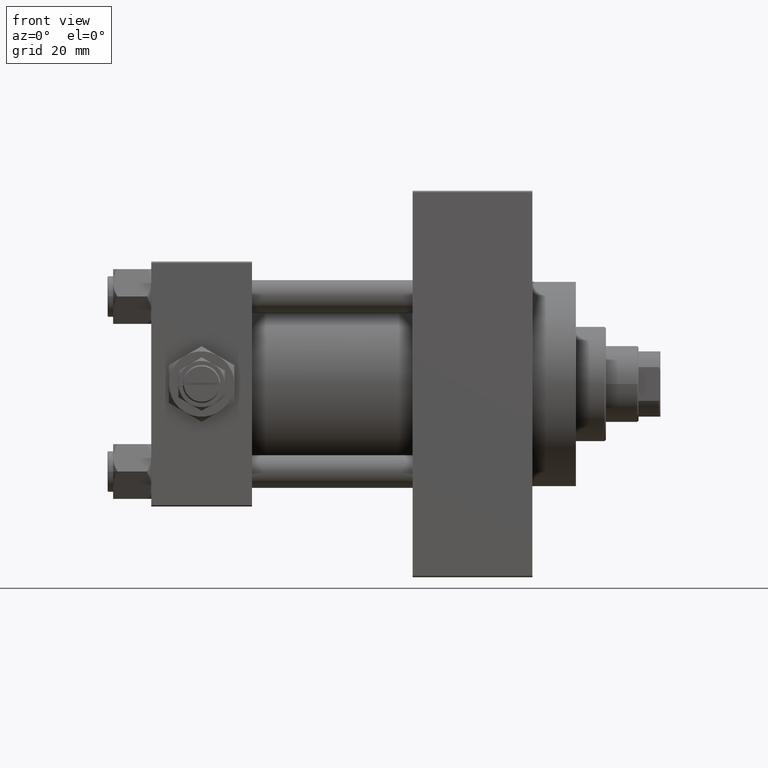
[diagram: clean part render]
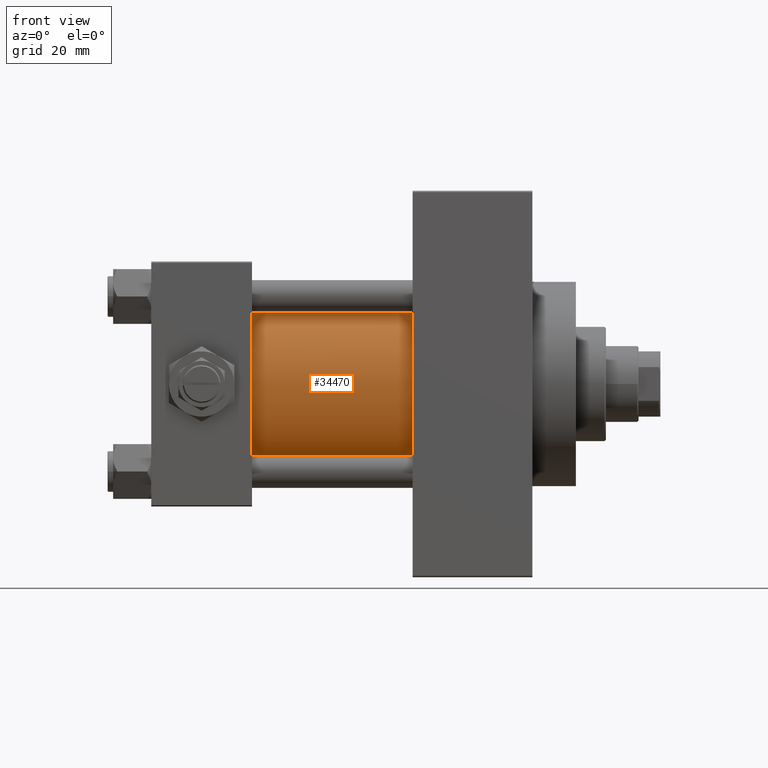
[diagram: same view with one face highlighted and labeled with its STEP entity id]
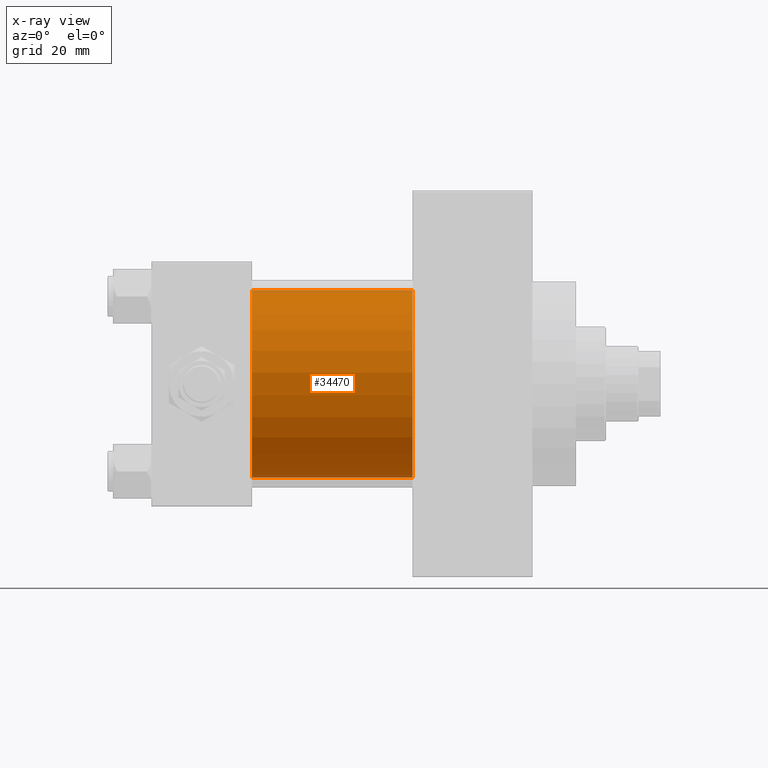
[diagram: x-ray of the same camera — body ghosted, the highlighted face saturated]
A machine part, front view. The second image highlights one B-rep face of the part: STEP entity #34470.
The next image is the same camera in x-ray: the body ghosted, the highlighted face saturated — about 3% of this face is hidden behind the body in this view.
In plain terms, the highlighted cylindrical surface (partial cylindrical patch) has radius 34.5 mm, axis along (-1, -0, -0).
Its self-contained STEP definition (entity closure, byte-faithful):
#238 = VECTOR ( 'NONE', #20590, 1000.000000000000000 ) ;
#807 = VECTOR ( 'NONE', #38038, 1000.000000000000000 ) ;
#4815 = DIRECTION ( 'NONE',  ( -1.000000000000000000, -0.000000000000000000, -0.000000000000000000 ) ) ;
#5663 = EDGE_CURVE ( 'NONE', #15270, #40320, #37806, .T. ) ;
#5730 = DIRECTION ( 'NONE',  ( 0.000000000000000000, 0.000000000000000000, 1.000000000000000000 ) ) ;
#5838 = ORIENTED_EDGE ( 'NONE', *, *, #5663, .F. ) ;
#5963 = VERTEX_POINT ( 'NONE', #18711 ) ;
#6224 = EDGE_CURVE ( 'NONE', #5963, #40320, #15119, .T. ) ;
#6469 = CARTESIAN_POINT ( 'NONE',  ( 37.00000000000000000, -2.602085213965210642E-15, 0.000000000000000000 ) ) ;
#7174 = AXIS2_PLACEMENT_3D ( 'NONE', #6469, #39681, #5730 ) ;
#7446 = DIRECTION ( 'NONE',  ( 1.000000000000000000, 0.000000000000000000, 0.000000000000000000 ) ) ;
#12033 = ORIENTED_EDGE ( 'NONE', *, *, #6224, .T. ) ;
#12769 = CARTESIAN_POINT ( 'NONE',  ( 96.00000000000000000, -2.602085213965210642E-15, 0.000000000000000000 ) ) ;
#13354 = ORIENTED_EDGE ( 'NONE', *, *, #40679, .F. ) ;
#14279 = EDGE_CURVE ( 'NONE', #44573, #5963, #24303, .T. ) ;
#15119 = CIRCLE ( 'NONE', #7174, 34.50000000000000000 ) ;
#15270 = VERTEX_POINT ( 'NONE', #22329 ) ;
#17440 = CARTESIAN_POINT ( 'NONE',  ( 37.00000000000000000, 1.622946243093158675E-15, -34.50000000000000000 ) ) ;
#18711 = CARTESIAN_POINT ( 'NONE',  ( 37.00000000000000000, -2.602085213965210642E-15, 34.50000000000000000 ) ) ;
#19532 = CARTESIAN_POINT ( 'NONE',  ( 96.00000000000000000, -2.602085213965210642E-15, 34.50000000000000000 ) ) ;
#19561 = ORIENTED_EDGE ( 'NONE', *, *, #14279, .T. ) ;
#19740 = CIRCLE ( 'NONE', #34752, 34.50000000000000000 ) ;
#20590 = DIRECTION ( 'NONE',  ( -1.000000000000000000, -0.000000000000000000, -0.000000000000000000 ) ) ;
#21254 = EDGE_LOOP ( 'NONE', ( #5838, #13354, #19561, #12033 ) ) ;
#22329 = CARTESIAN_POINT ( 'NONE',  ( 96.00000000000000000, 1.622946243093158675E-15, -34.50000000000000000 ) ) ;
#24303 = LINE ( 'NONE', #43615, #238 ) ;
#26276 = DIRECTION ( 'NONE',  ( 0.000000000000000000, 0.000000000000000000, -1.000000000000000000 ) ) ;
#29504 = CARTESIAN_POINT ( 'NONE',  ( 96.00000000000000000, -2.602085213965210642E-15, 0.000000000000000000 ) ) ;
#30377 = CARTESIAN_POINT ( 'NONE',  ( 96.00000000000000000, 1.622946243093158675E-15, -34.50000000000000000 ) ) ;
#34470 = ADVANCED_FACE ( 'NONE', ( #38543 ), #42990, .T. ) ;
#34752 = AXIS2_PLACEMENT_3D ( 'NONE', #29504, #7446, #26276 ) ;
#34813 = DIRECTION ( 'NONE',  ( 0.000000000000000000, 0.000000000000000000, 1.000000000000000000 ) ) ;
#37806 = LINE ( 'NONE', #30377, #807 ) ;
#38038 = DIRECTION ( 'NONE',  ( -1.000000000000000000, -0.000000000000000000, -0.000000000000000000 ) ) ;
#38543 = FACE_OUTER_BOUND ( 'NONE', #21254, .T. ) ;
#39681 = DIRECTION ( 'NONE',  ( 1.000000000000000000, -0.000000000000000000, 0.000000000000000000 ) ) ;
#40320 = VERTEX_POINT ( 'NONE', #17440 ) ;
#40679 = EDGE_CURVE ( 'NONE', #44573, #15270, #19740, .T. ) ;
#41680 = AXIS2_PLACEMENT_3D ( 'NONE', #12769, #4815, #34813 ) ;
#42990 = CYLINDRICAL_SURFACE ( 'NONE', #41680, 34.50000000000000000 ) ;
#43615 = CARTESIAN_POINT ( 'NONE',  ( 96.00000000000000000, -2.602085213965210642E-15, 34.50000000000000000 ) ) ;
#44573 = VERTEX_POINT ( 'NONE', #19532 ) ;